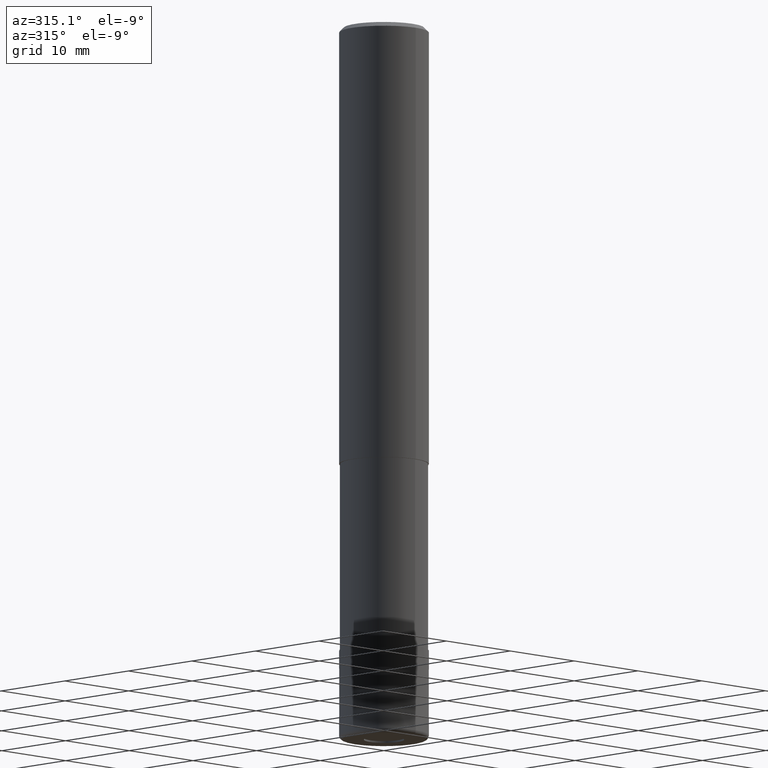
[diagram: clean part render]
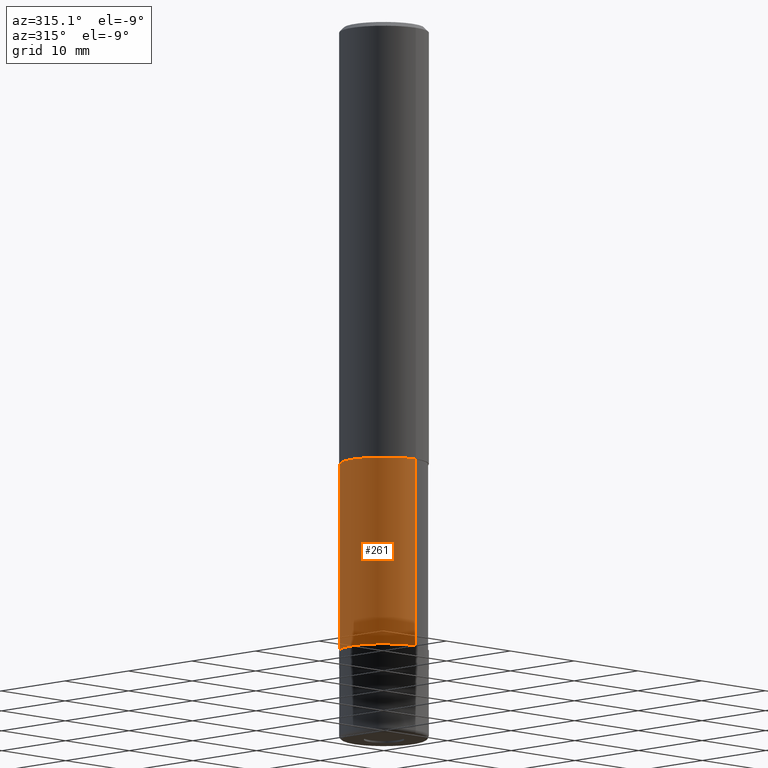
[diagram: same view with one face highlighted and labeled with its STEP entity id]
A machine part, auxiliary view. The second image highlights one B-rep face of the part: STEP entity #261.
In plain terms, the highlighted cylindrical surface (partial cylindrical patch) has radius 4.905 mm, axis along (-0, -0, 1).
Its self-contained STEP definition (entity closure, byte-faithful):
#117=VERTEX_POINT('',#304);
#143=EDGE_CURVE('',#281,#173,#333,.T.);
#173=VERTEX_POINT('',#365);
#179=EDGE_CURVE('',#117,#173,#372,.T.);
#211=EDGE_CURVE('',#251,#117,#407,.T.);
#231=EDGE_CURVE('',#281,#251,#431,.T.);
#251=VERTEX_POINT('',#455);
#261=ADVANCED_FACE('',(#467),#468,.T.);
#281=VERTEX_POINT('',#492);
#304=CARTESIAN_POINT('',(0.0,4.90495,-49.0));
#333=CIRCLE('',#544,4.90495);
#365=CARTESIAN_POINT('',(0.0,4.90495,-70.0));
#372=LINE('',#594,#595);
#407=CIRCLE('',#643,4.90495);
#431=LINE('',#672,#673);
#455=CARTESIAN_POINT('',(6.00663293518107E-016,-4.90495,-49.0));
#467=FACE_OUTER_BOUND('',#714,.T.);
#468=CYLINDRICAL_SURFACE('',#715,4.90495);
#492=CARTESIAN_POINT('',(6.00663293518107E-016,-4.90495,-70.0));
#544=AXIS2_PLACEMENT_3D('',#784,#785,#786);
#594=CARTESIAN_POINT('',(-6.00663293518107E-016,4.90495,-59.5));
#595=VECTOR('',#836,1.0);
#643=AXIS2_PLACEMENT_3D('',#875,#876,#877);
#672=CARTESIAN_POINT('',(6.00663293518107E-016,-4.90495,-59.5));
#673=VECTOR('',#913,1.0);
#714=EDGE_LOOP('',(#957,#958,#959,#960));
#715=AXIS2_PLACEMENT_3D('',#961,#962,#963);
#784=CARTESIAN_POINT('',(0.0,0.0,-70.0));
#785=DIRECTION('',(0.0,0.0,-1.0));
#786=DIRECTION('',(0.0,1.0,0.0));
#836=DIRECTION('',(0.0,0.0,-1.0));
#875=CARTESIAN_POINT('',(0.0,0.0,-49.0));
#876=DIRECTION('',(0.0,0.0,-1.0));
#877=DIRECTION('',(0.0,1.0,0.0));
#913=DIRECTION('',(-0.0,-0.0,1.0));
#957=ORIENTED_EDGE('',*,*,#179,.T.);
#958=ORIENTED_EDGE('',*,*,#143,.F.);
#959=ORIENTED_EDGE('',*,*,#231,.T.);
#960=ORIENTED_EDGE('',*,*,#211,.T.);
#961=CARTESIAN_POINT('',(0.0,0.0,-59.5));
#962=DIRECTION('',(-0.0,-0.0,1.0));
#963=DIRECTION('',(0.0,1.0,0.0));